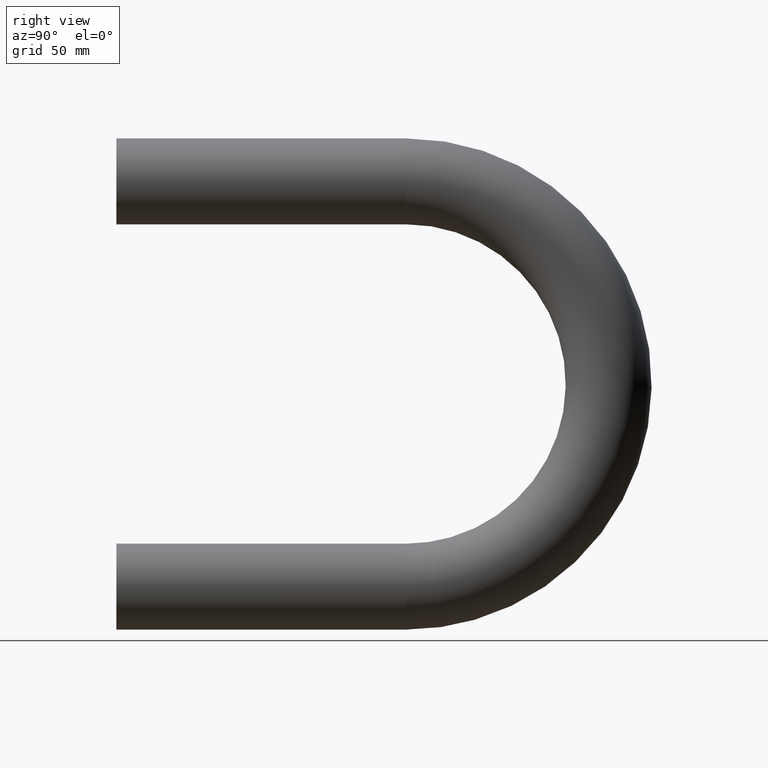
[diagram: clean part render]
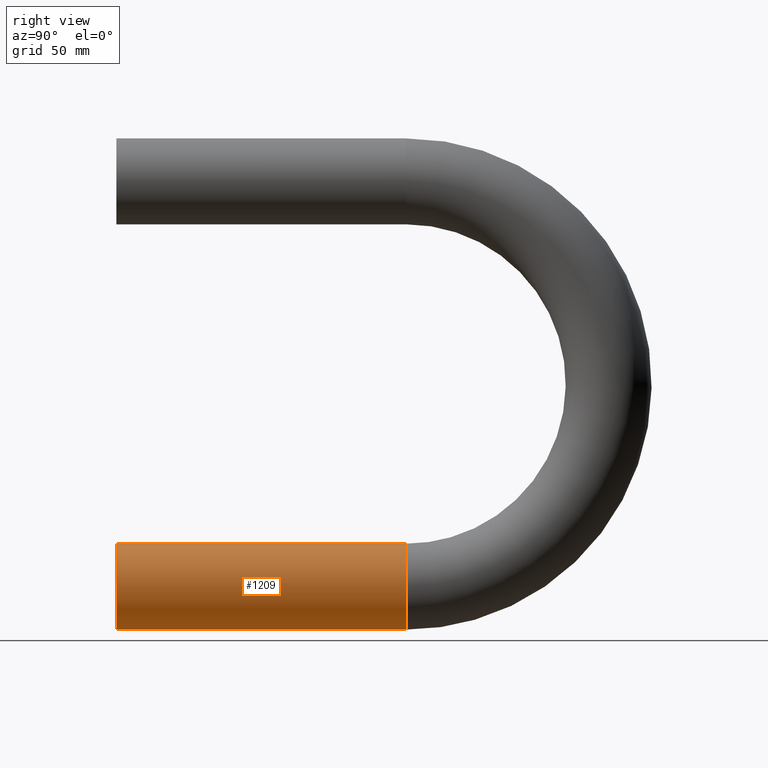
[diagram: same view with one face highlighted and labeled with its STEP entity id]
A machine part, right view. The second image highlights one B-rep face of the part: STEP entity #1209.
In plain terms, the highlighted cylindrical surface (bore or boss wall) has radius 21.2 mm, axis along (0, -1, 0).
Its self-contained STEP definition (entity closure, byte-faithful):
#528 = ORIENTED_EDGE ( 'NONE', *, *, #8453, .T. ) ;
#949 = CYLINDRICAL_SURFACE ( 'NONE', #8728, 21.19999999999999574 ) ;
#1209 = ADVANCED_FACE ( 'NONE', ( #4790, #5384 ), #949, .T. ) ;
#1604 = VERTEX_POINT ( 'NONE', #8026 ) ;
#2113 = DIRECTION ( 'NONE',  ( 0.000000000000000000, -1.000000000000000000, -1.224646799147353207E-16 ) ) ;
#2218 = DIRECTION ( 'NONE',  ( 0.000000000000000000, 1.224646799147353454E-16, -1.000000000000000000 ) ) ;
#2362 = CIRCLE ( 'NONE', #2966, 21.19999999999999574 ) ;
#2966 = AXIS2_PLACEMENT_3D ( 'NONE', #6913, #2113, #9660 ) ;
#3510 = DIRECTION ( 'NONE',  ( 0.000000000000000000, -1.000000000000000000, 0.000000000000000000 ) ) ;
#4790 = FACE_OUTER_BOUND ( 'NONE', #12222, .T. ) ;
#4910 = CARTESIAN_POINT ( 'NONE',  ( 0.000000000000000000, 142.9203673205103371, -221.2000000000000171 ) ) ;
#5384 = FACE_OUTER_BOUND ( 'NONE', #9492, .T. ) ;
#5742 = AXIS2_PLACEMENT_3D ( 'NONE', #11609, #8017, #2218 ) ;
#6327 = CARTESIAN_POINT ( 'NONE',  ( 0.000000000000000000, 142.9203673205103371, -200.0000000000000000 ) ) ;
#6913 = CARTESIAN_POINT ( 'NONE',  ( 0.000000000000000000, 142.9203673205103371, -200.0000000000000000 ) ) ;
#6928 = ORIENTED_EDGE ( 'NONE', *, *, #9375, .F. ) ;
#7192 = DIRECTION ( 'NONE',  ( 0.000000000000000000, 0.000000000000000000, -1.000000000000000000 ) ) ;
#8017 = DIRECTION ( 'NONE',  ( 0.000000000000000000, -1.000000000000000000, -1.224646799147353207E-16 ) ) ;
#8026 = CARTESIAN_POINT ( 'NONE',  ( 0.000000000000000000, 2.596251214192388770E-15, -221.2000000000000171 ) ) ;
#8453 = EDGE_CURVE ( 'NONE', #8839, #8839, #2362, .T. ) ;
#8728 = AXIS2_PLACEMENT_3D ( 'NONE', #6327, #3510, #7192 ) ;
#8839 = VERTEX_POINT ( 'NONE', #4910 ) ;
#9375 = EDGE_CURVE ( 'NONE', #1604, #1604, #9766, .T. ) ;
#9492 = EDGE_LOOP ( 'NONE', ( #6928 ) ) ;
#9660 = DIRECTION ( 'NONE',  ( 0.000000000000000000, 0.000000000000000000, -1.000000000000000000 ) ) ;
#9766 = CIRCLE ( 'NONE', #5742, 21.19999999999999574 ) ;
#11609 = CARTESIAN_POINT ( 'NONE',  ( 0.000000000000000000, 0.000000000000000000, -200.0000000000000000 ) ) ;
#12222 = EDGE_LOOP ( 'NONE', ( #528 ) ) ;